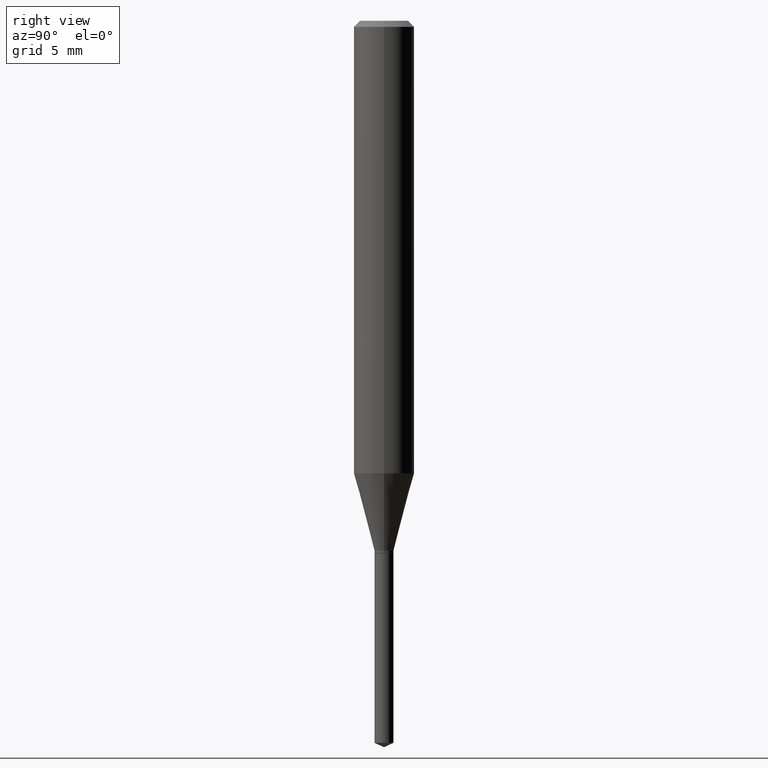
[diagram: clean part render]
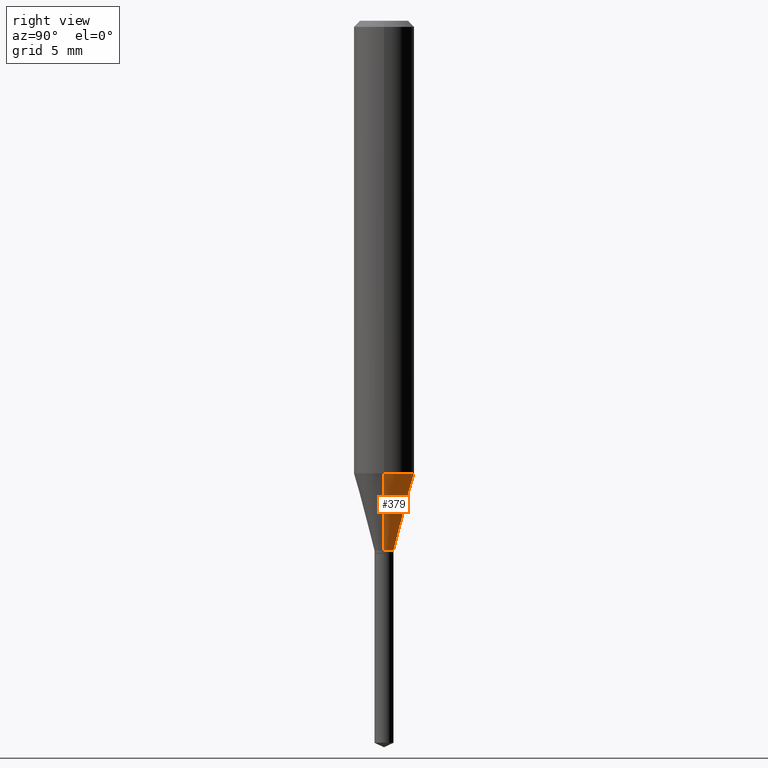
[diagram: same view with one face highlighted and labeled with its STEP entity id]
A machine part, right view. The second image highlights one B-rep face of the part: STEP entity #379.
In plain terms, the highlighted conical surface has half-angle 15 deg.
Its self-contained STEP definition (entity closure, byte-faithful):
#8 = CARTESIAN_POINT ( 'NONE',  ( 0.06250000000000011102, -3.698764390073353980E-15, -0.9343682254360521355 ) ) ;
#47 = DIRECTION ( 'NONE',  ( 1.000000000000000000, -6.982962677686265922E-15, 0.000000000000000000 ) ) ;
#56 = ORIENTED_EDGE ( 'NONE', *, *, #339, .F. ) ;
#57 = ORIENTED_EDGE ( 'NONE', *, *, #127, .T. ) ;
#58 = VERTEX_POINT ( 'NONE', #219 ) ;
#60 = ORIENTED_EDGE ( 'NONE', *, *, #217, .T. ) ;
#74 = DIRECTION ( 'NONE',  ( -2.445468806185136597E-29, 3.491481338843145583E-15, 1.000000000000000000 ) ) ;
#98 = AXIS2_PLACEMENT_3D ( 'NONE', #351, #435, #226 ) ;
#116 = LINE ( 'NONE', #190, #358 ) ;
#127 = EDGE_CURVE ( 'NONE', #58, #234, #221, .T. ) ;
#133 = VERTEX_POINT ( 'NONE', #8 ) ;
#167 = CARTESIAN_POINT ( 'NONE',  ( 0.01969999999999999876, -3.957594097578706363E-15, -1.094100000000000295 ) ) ;
#177 = DIRECTION ( 'NONE',  ( 0.2588190451025212391, 1.565188264969622362E-15, 0.9659258262890679791 ) ) ;
#190 = CARTESIAN_POINT ( 'NONE',  ( -0.01969999999999999876, -3.680052813883547051E-15, -1.094100000000000295 ) ) ;
#217 = EDGE_CURVE ( 'NONE', #234, #277, #116, .T. ) ;
#219 = CARTESIAN_POINT ( 'NONE',  ( 0.01969999999999999876, -3.957594097578706363E-15, -1.094100000000000295 ) ) ;
#221 = CIRCLE ( 'NONE', #98, 0.01969999999999999876 ) ;
#226 = DIRECTION ( 'NONE',  ( 1.000000000000000000, -6.982962677686278543E-15, 0.000000000000000000 ) ) ;
#234 = VERTEX_POINT ( 'NONE', #363 ) ;
#235 = DIRECTION ( 'NONE',  ( -0.2588190451025212391, 5.211531920934549464E-15, 0.9659258262890679791 ) ) ;
#245 = AXIS2_PLACEMENT_3D ( 'NONE', #346, #484, #448 ) ;
#277 = VERTEX_POINT ( 'NONE', #458 ) ;
#283 = EDGE_LOOP ( 'NONE', ( #57, #60, #56, #356 ) ) ;
#294 = LINE ( 'NONE', #167, #419 ) ;
#339 = EDGE_CURVE ( 'NONE', #133, #277, #470, .T. ) ;
#346 = CARTESIAN_POINT ( 'NONE',  ( 2.675587420847158338E-29, -3.820029732828286359E-15, -1.094100000000000295 ) ) ;
#351 = CARTESIAN_POINT ( 'NONE',  ( 2.675587420847158338E-29, -3.820029732828286359E-15, -1.094100000000000295 ) ) ;
#356 = ORIENTED_EDGE ( 'NONE', *, *, #372, .F. ) ;
#358 = VECTOR ( 'NONE', #235, 39.37007874015748854 ) ;
#360 = CONICAL_SURFACE ( 'NONE', #245, 0.01969999999999999876, 0.2617993877991499629 ) ;
#363 = CARTESIAN_POINT ( 'NONE',  ( -0.01969999999999999876, -3.689479813498422381E-15, -1.094100000000000295 ) ) ;
#372 = EDGE_CURVE ( 'NONE', #58, #133, #294, .T. ) ;
#375 = CARTESIAN_POINT ( 'NONE',  ( 2.284968348794427209E-29, -3.262329222717961522E-15, -0.9343682254360521355 ) ) ;
#377 = FACE_OUTER_BOUND ( 'NONE', #283, .T. ) ;
#379 = ADVANCED_FACE ( 'NONE', ( #377 ), #360, .T. ) ;
#419 = VECTOR ( 'NONE', #177, 39.37007874015748854 ) ;
#435 = DIRECTION ( 'NONE',  ( -2.445468806185136597E-29, 3.491481338843145583E-15, 1.000000000000000000 ) ) ;
#448 = DIRECTION ( 'NONE',  ( 1.000000000000000000, -6.982962677686278543E-15, 0.000000000000000000 ) ) ;
#453 = AXIS2_PLACEMENT_3D ( 'NONE', #375, #74, #47 ) ;
#458 = CARTESIAN_POINT ( 'NONE',  ( -0.06250000000000011102, -2.818240012867898117E-15, -0.9343682254360521355 ) ) ;
#470 = CIRCLE ( 'NONE', #453, 0.06250000000000011102 ) ;
#484 = DIRECTION ( 'NONE',  ( -2.445468806185136597E-29, 3.491481338843145583E-15, 1.000000000000000000 ) ) ;